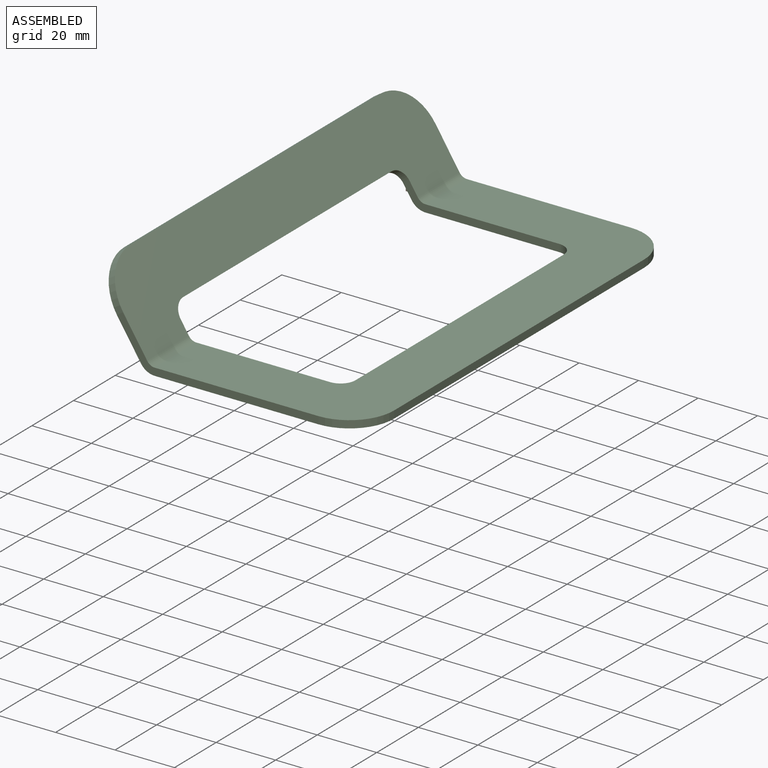
[diagram: assembled view]
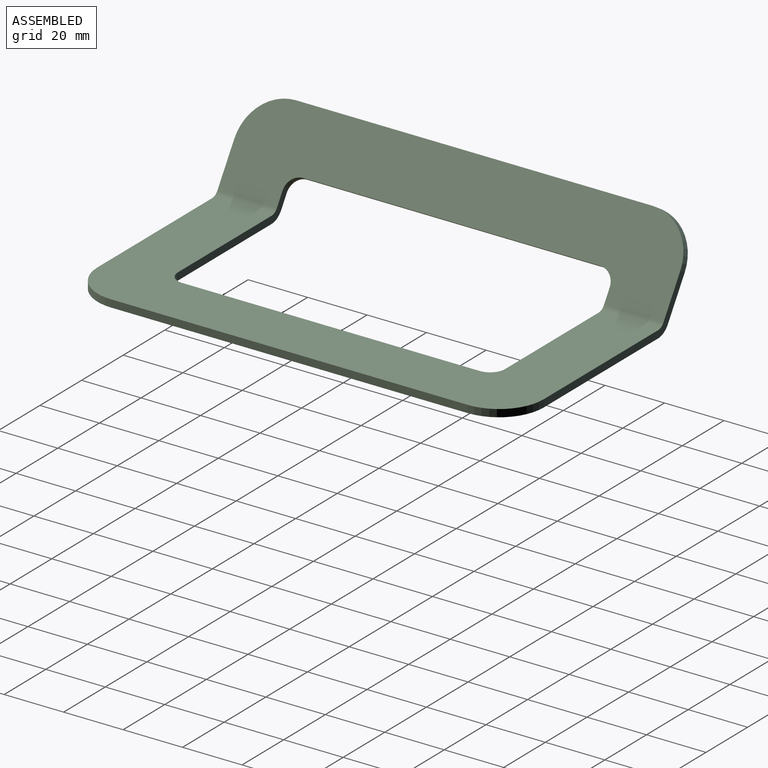
[diagram: assembled view, second angle]
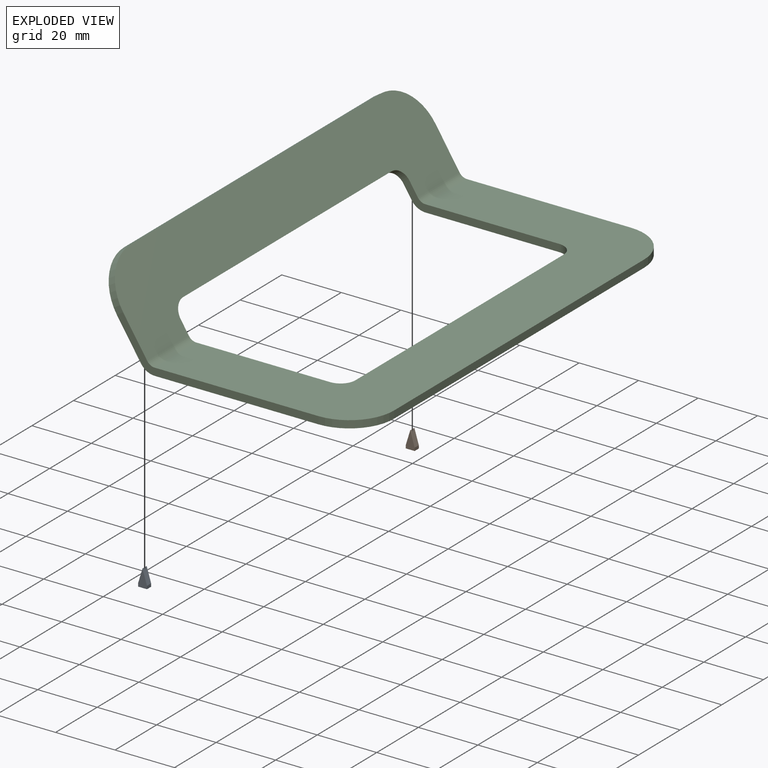
[diagram: exploded view]
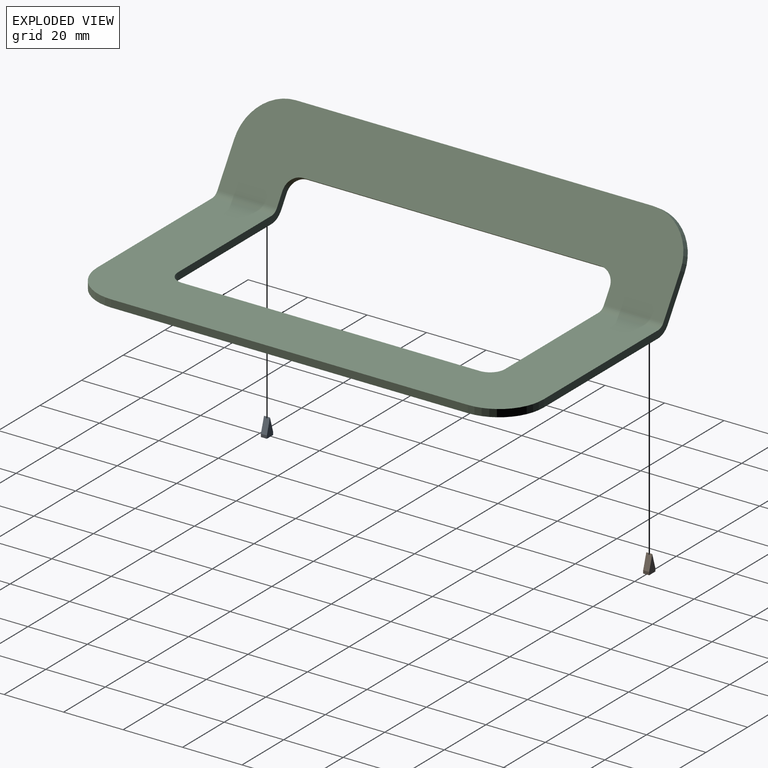
[diagram: exploded view, second angle]
ASSEMBLY  parts=3 mates=2
PART A: 7 faces, bbox 3x2x5.9 mm
  f0: plane 2x1mm, normal (1,0,0), area 2mm2, adj f1,f4,f5,f6
  f1: plane 4.9x2mm, normal (0.96,0,0.29), area 10.2mm2, adj f0,f2,f5,f6
  f2: plane 4.9x2mm, normal (-0.96,0,0.29), area 10.2mm2, adj f1,f3,f5,f6
  f3: plane 2x1mm, normal (-1,0,0), area 2mm2, adj f2,f4,f5,f6
  f4: plane 3x2mm, normal (0,0,-1), area 6mm2, adj f0,f3,f5,f6
  f5: plane 5.9x3mm, normal (0,1,0), area 10.3mm2, adj f0,f1,f2,f3,f4
  f6: plane 5.9x3mm, normal (0,-1,0), area 10.3mm2, adj f0,f1,f2,f3,f4
PART B: same geometry as A
PART C: 32 faces, bbox 90.8x150x29.1 mm
  f0: cylinder r=3mm len=20mm, axis (0,1,0), area 60mm2, adj f2,f7,f10,f12
  f1: cylinder r=5.5mm len=20mm, axis (0,1,0), area 110mm2, adj f3,f4,f11,f14
  f2: plane 150x25.24mm, normal (0.84,0,0.54), area 3314.2mm2, adj f0,f8,f9,f10,f11,f12,f14,f15
  f3: plane 150x25.24mm, normal (-0.84,0,-0.54), area 3289mm2, adj f1,f5,f9,f10,f11,f12,f14,f15
  f4: plane 150x70mm, normal (0,0,-1), area 4914.2mm2, adj f1,f5,f6,f10,f11,f12,f13,f14
  f5: cylinder r=5.5mm len=20mm, axis (0,1,0), area 110mm2, adj f3,f4,f10,f12
  f6: plane 120x2.5mm, normal (1,0,0), area 300mm2, adj f4,f7,f25,f27
  f7: plane 150x70mm, normal (0,0,1), area 4914.2mm2, adj f0,f6,f8,f10,f11,f12,f13,f14
  f8: cylinder r=3mm len=20mm, axis (0,1,0), area 60mm2, adj f2,f7,f11,f14
  f9: plane 120x2.1mm, normal (-0.54,0,0.84), area 300mm2, adj f2,f3,f24,f26
  f10: plane 67.73x16.5mm, normal (0,-1,0), area 185.6mm2, adj f0,f2,f3,f4,f5,f7,f26,f27
  f11: plane 67.73x16.5mm, normal (0,1,0), area 185.6mm2, adj f1,f2,f3,f4,f7,f8,f24,f25
  f12: plane 52.33x8.09mm, normal (0,1,0), area 135.6mm2, adj f0,f2,f3,f4,f5,f7,f28,f30
  f13: plane 100x2.5mm, normal (-1,0,0), area 250mm2, adj f4,f7,f30,f31
  f14: plane 52.33x8.09mm, normal (0,-1,0), area 135.6mm2, adj f1,f2,f3,f4,f7,f8,f29,f31
  f15: plane 100x2.1mm, normal (0.54,0,-0.84), area 250mm2, adj f2,f3,f28,f29
  f16: cylinder r=2mm len=4.18mm, axis (0.84,0,0.54), area 18.8mm2, adj f3,f23
  f17: cylinder r=2mm len=4.18mm, axis (0.84,0,0.54), area 18.8mm2, adj f3,f20
  f18: cylinder r=3.75mm len=7.5mm, axis (0.84,0,0.54), area 47.1mm2, adj f19,f20
  f19: plane 7.5x6.31mm, normal (-0.84,0,-0.54), area 44.2mm2, adj f18
  f20: plane 7.5x6.31mm, normal (0.84,0,0.54), area 31.6mm2, adj f17,f18
  f21: cylinder r=3.75mm len=7.5mm, axis (0.84,0,0.54), area 47.1mm2, adj f22,f23
  f22: plane 7.5x6.31mm, normal (-0.84,0,-0.54), area 44.2mm2, adj f21
  f23: plane 7.5x6.31mm, normal (0.84,0,0.54), area 31.6mm2, adj f16,f21
  f24: cylinder r=15mm len=15mm, axis (-0.84,0,-0.54), area 58.9mm2, adj f2,f3,f9,f11
  f25: cylinder r=15mm len=15mm, axis (0,0,1), area 58.9mm2, adj f4,f6,f7,f11
  f26: cylinder r=15mm len=15mm, axis (0.84,0,0.54), area 58.9mm2, adj f2,f3,f9,f10
  f27: cylinder r=15mm len=15mm, axis (0,0,-1), area 58.9mm2, adj f4,f6,f7,f10
  f28: cylinder r=5mm len=5.56mm, axis (0.84,0,0.54), area 19.6mm2, adj f2,f3,f12,f15
  f29: cylinder r=5mm len=5.56mm, axis (-0.84,0,-0.54), area 19.6mm2, adj f2,f3,f14,f15
  f30: cylinder r=5mm len=5mm, axis (0,0,-1), area 19.6mm2, adj f4,f7,f12,f13
  f31: cylinder r=5mm len=5mm, axis (0,0,1), area 19.6mm2, adj f4,f7,f13,f14
PLACE A t=(-102.37,-166.28,13.6)mm
PLACE B t=(-102.37,-37.73,13.6)mm
PLACE C t=(-56.42,-26.06,14.35)mm
MATE planar C.f4 <-> B.f4  axis (0,0,-1) through (-68.92,-46.06,13.1)mm
MATE planar C.f4 <-> A.f4  axis (0,0,-1) through (-45.82,-101.06,13.1)mm
